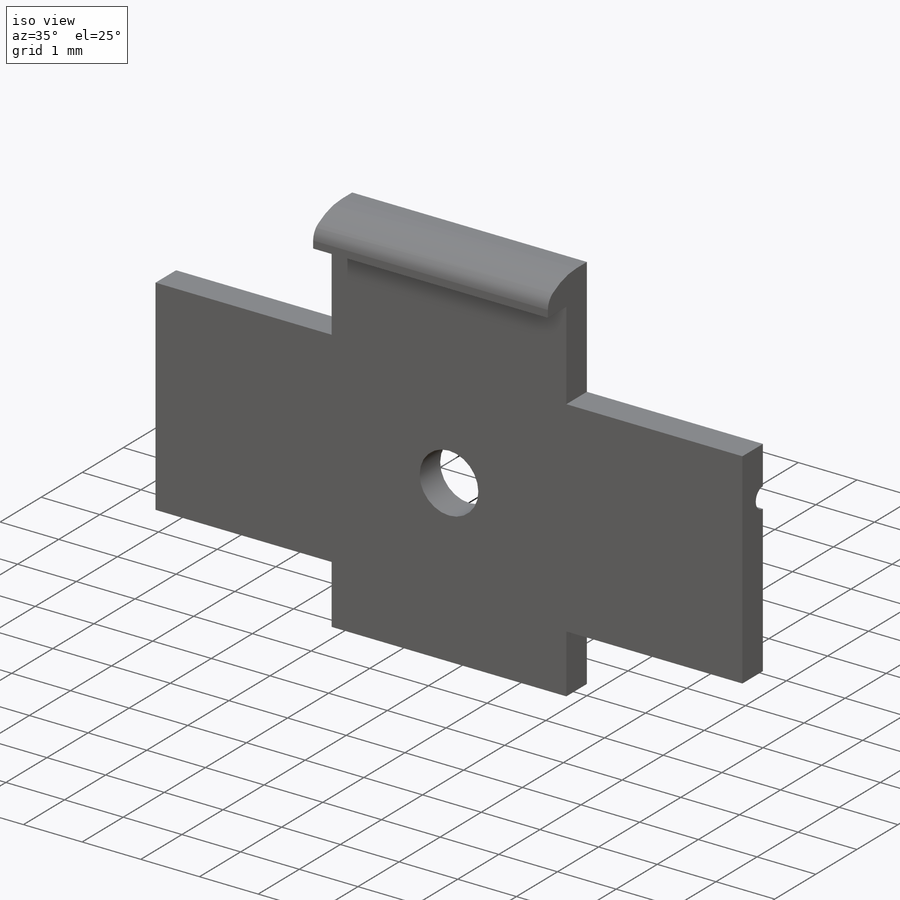
[diagram: iso view]
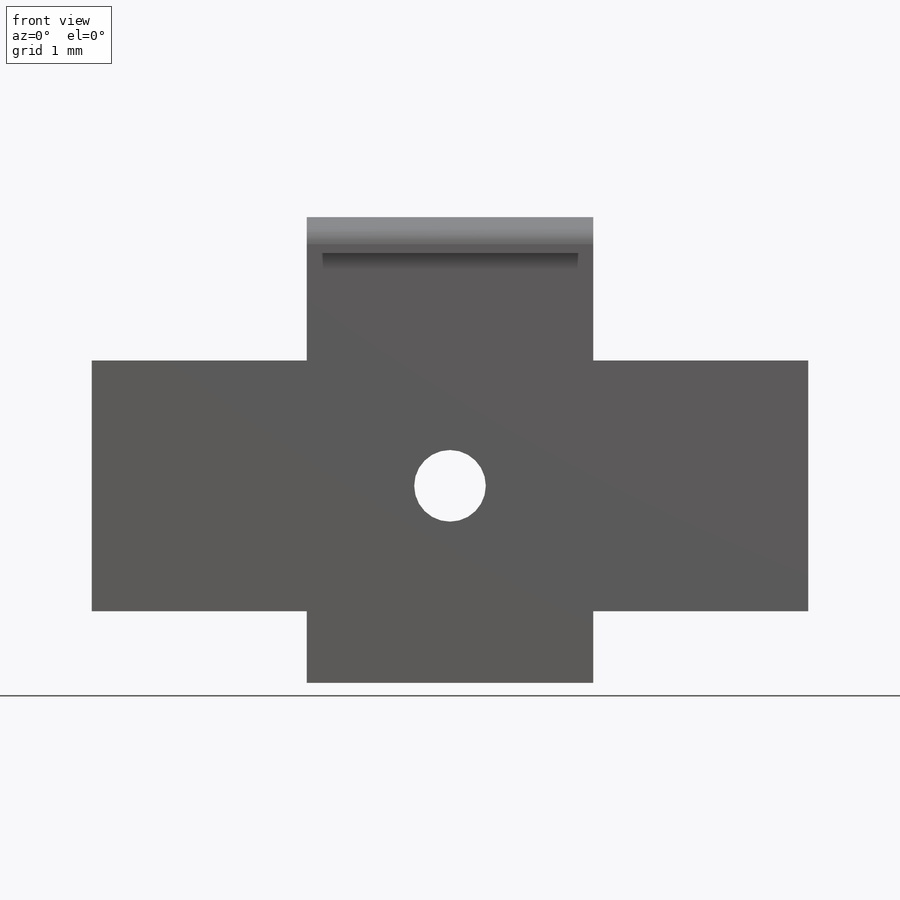
[diagram: front view]
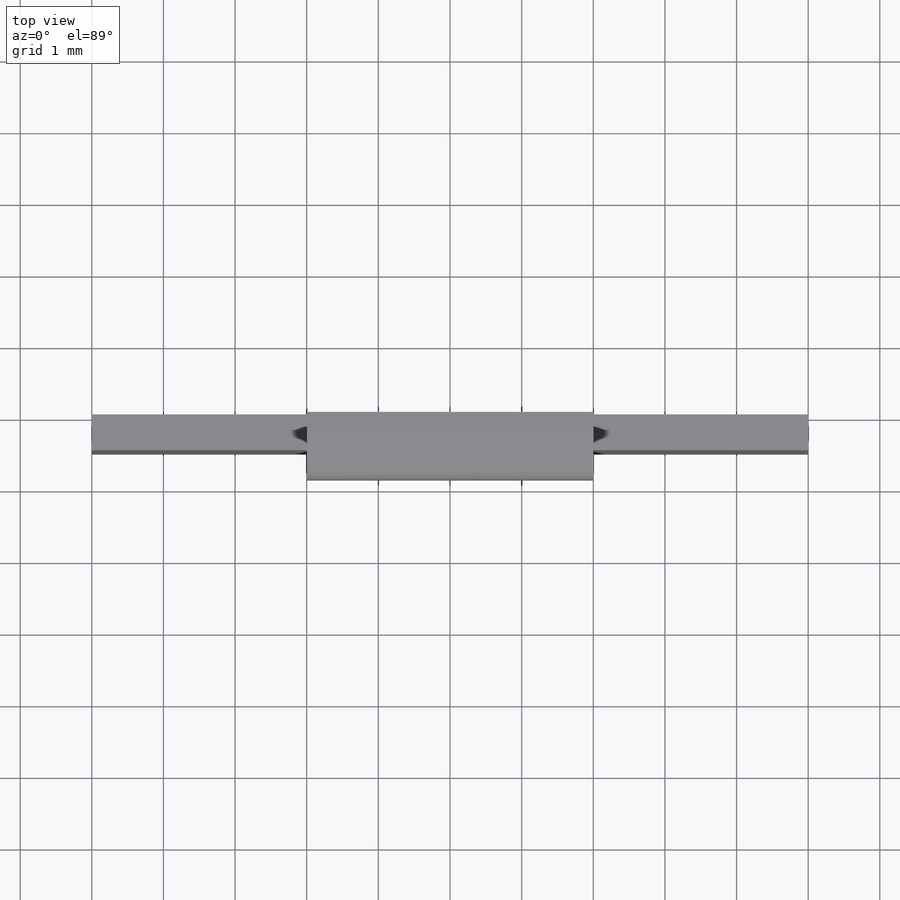
[diagram: top view]
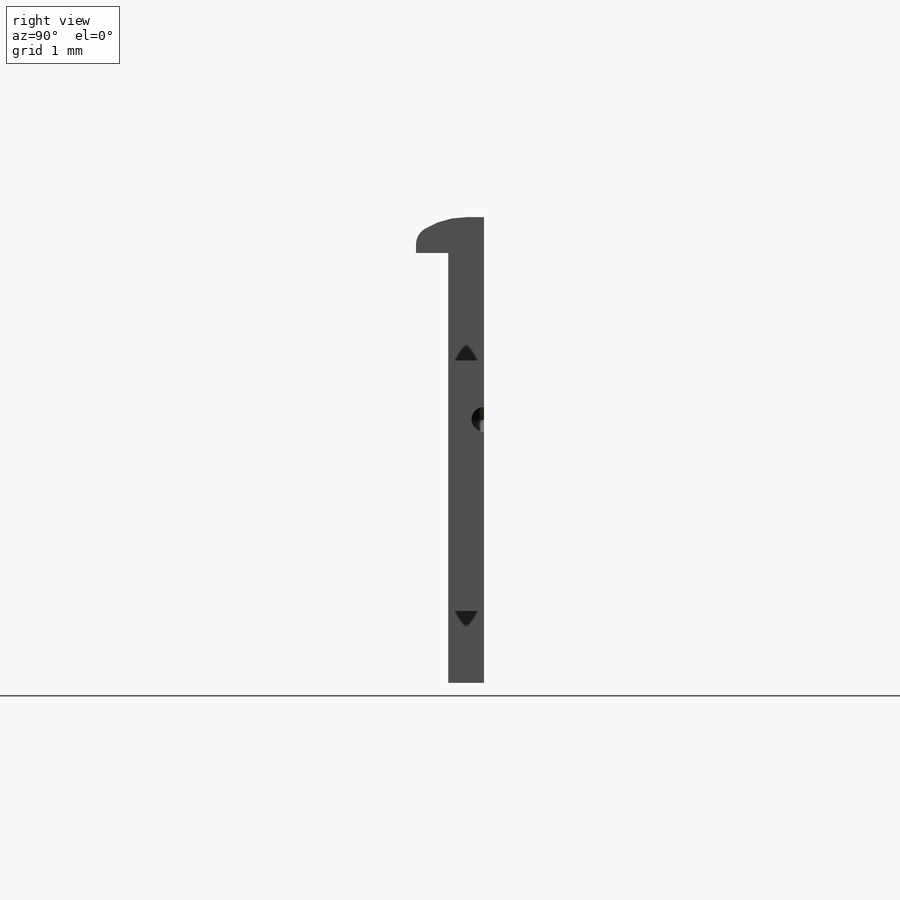
[diagram: right view]
SOLIDWORKS PART (.sldprt)
format: sldprt  version: not decoded by parser v0  size: 227,840 bytes
history: native  units: mm
features: sketch x5, plane x3, extrude x2, material x1, cut_extrude x1, hole x1 (+8 scaffold rows collapsed)
feature tree (21):
  scaffold x8  (default folders/planes/origin — collapsed)
  material  "Material <sin especificar>"
  plane  "Alzado"
  plane  "Planta"
  plane  "Vista lateral"
  sketch  "Croquis1"  dims[D1=4.0mm D2=3.0mm D3=3.0mm D4=1.5mm D5=3.5mm D6=1.0mm]
  extrude  "Saliente-Extruir1"  Depth=0.5mm
  sketch  "Croquis2"  dims[D1=1.0mm]
  cut_extrude  "Cortar-Extruir1"  [1 undecoded]
  sketch  "Croquis3"  dims[D5=0.25mm D1=0.45mm D2=0.5mm D3=0.25mm D4=0.25mm]
  extrude  "Saliente-Extruir2"  [1 undecoded]
  hole  "Diámetro de taladro Ø0.35 (0.35)1"  Depth=3mm  [1 undecoded]
  sketch  "Croquis3D1"  dims[D1=0.825mm D2=0.825mm]
  sketch  "Croquis5"  dims[hole-wizard template sketch: 46 standard entries collapsed; hole parameters kept: c15.Diámetro de taladro=0.35mm c15.Profundidad de taladro=3.0mm c15.D3=~14.816244mm c15.Ángulo de perforador=118.0deg]
decode coverage: 7 of 9 modeling features carry decoded parameters
note: ~ marks probable driven/reference dimensions
note: 3 parameter values undecoded
summary: no parameter record found for 3 features
note: suppression state not decoded; provenance and decode notes live in map.json
